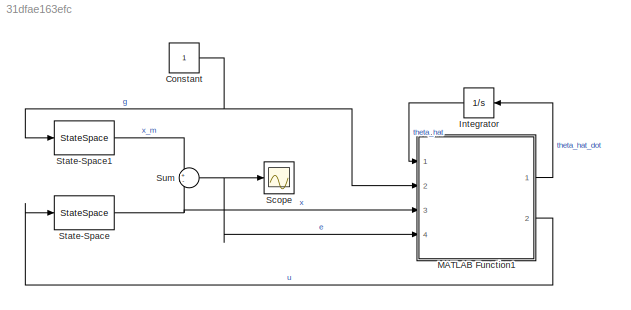
MODEL slx_31dfae163efc
KIND model
CONFIG AbsTol = auto
CONFIG EnableMultiTasking = off
CONFIG FixedStep = auto
CONFIG MaxStep = auto
CONFIG MinStep = auto
CONFIG RelTol = 1e-3
CONFIG SampleTimeConstraint = Unconstrained
CONFIG SolverName = VariableStepAuto
CONFIG StartTime = 0.0
CONFIG StopTime = 10.0
BLOCK [Constant] Constant
BLOCK [Integrator] Integrator
  NameLocation = top
  Ports = [1, 1]
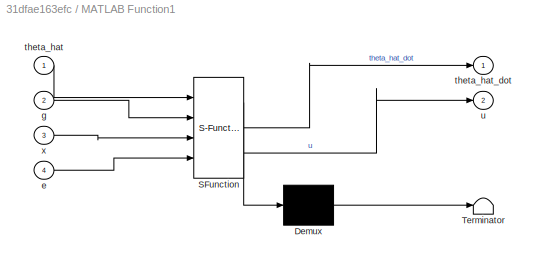
BLOCK [SubSystem] MATLAB Function1
  ErrorFcn = Stateflow.Translate.translate
  PermitHierarchicalResolution = ExplicitOnly
  Ports = [4, 2]
  RequestExecContextInheritance = off
  SFBlockType = MATLAB Function
  TreatAsAtomicUnit = on
BLOCK [Demux] MATLAB Function1/ Demux 
  Outputs = 1
  Ports = [1, 1]
BLOCK [S-Function] MATLAB Function1/ SFunction 
  EnableBusSupport = on
  FunctionName = sf_sfun
  Parameters = P,b,gamma,k
  PortCounts = [4 3]
  Ports = [4, 3]
  SFcnIsStateOwnerBlock = off
  SFunctionDeploymentMode = off
  Tag = Stateflow S-Function 1
BLOCK [Terminator] MATLAB Function1/ Terminator 
BLOCK [Inport] MATLAB Function1/e
  Port = 4
BLOCK [Inport] MATLAB Function1/g
  Port = 2
BLOCK [Inport] MATLAB Function1/theta_hat
BLOCK [Outport] MATLAB Function1/theta_hat_dot
BLOCK [Outport] MATLAB Function1/u
  Port = 2
BLOCK [Inport] MATLAB Function1/x
  Port = 3
BLOCK [Scope] Scope
  Floating = off
  NumInputPorts = 1
  Ports = [1]
  ScopeSpecificationString = Simulink.scopes.TimeScopeBlockCfg('CurrentConfiguration', extmgr.ConfigurationSet(extmgr.Configuration('Core','General UI',true),extmgr.Configuration('Core','Source UI',true),extmgr.Configuration('Sources','WiredSimulink',true),extmgr.Configuration('Visuals','Time Domain',true,'SerializedDisplays',{struct('MinYLimReal','-2123632108501.54956','MaxYLimReal','1471131197013.65479','YLabelReal','','Min...<+1452ch>
BLOCK [StateSpace] State-Space
  A = A
  B = b
  C = eye(2)
  D = [0;0]
  InitialCondition = x_0
  Ports = [1, 1]
BLOCK [StateSpace] State-Space1
  A = A_m
  B = b_m
  C = eye(2)
  D = [0;0]
  InitialCondition = 0
  Ports = [1, 1]
BLOCK [Sum] Sum
  Inputs = +-
  Ports = [2, 1]
NET Constant:1 -> MATLAB Function1:2, State-Space1:1
LINE Integrator:1 -> MATLAB Function1:1
LINE MATLAB Function1:1 -> Integrator:1
LINE MATLAB Function1:2 -> State-Space:1
LINE State-Space1:1 -> Sum:1
NET State-Space:1 -> MATLAB Function1:3, Sum:2
NET Sum:1 -> MATLAB Function1:4, Scope:1
note: NET lines group one-source signal fan-out (src -> all destinations, sorted); 1:1 wires keep LINE
CHART MATLAB Function1 states=1 transitions=1
  STATE_LABEL 'eML_blk_kernel()'
  STATE_LABEL "SCRIPT:\nfunction [theta_hat_dot, u]  = fcn(theta_hat, g, x, e, k, P, b, gamma)\n\nu = theta_hat'*x + g/k;\ntheta_hat_dot = gamma*x*b'*P*e;\n\n\n"
CHART  states=0 transitions=0
